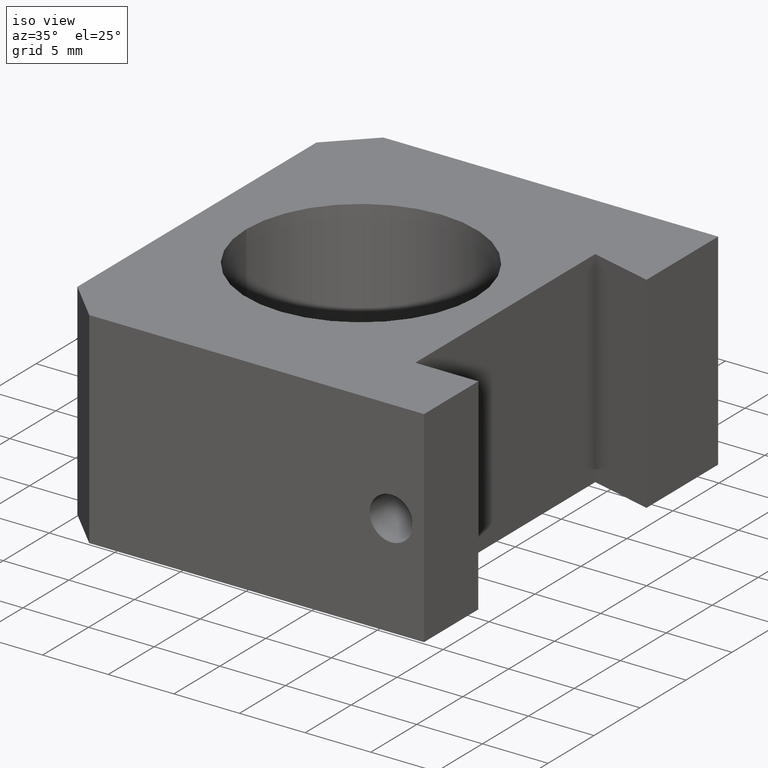
[diagram: clean part render]
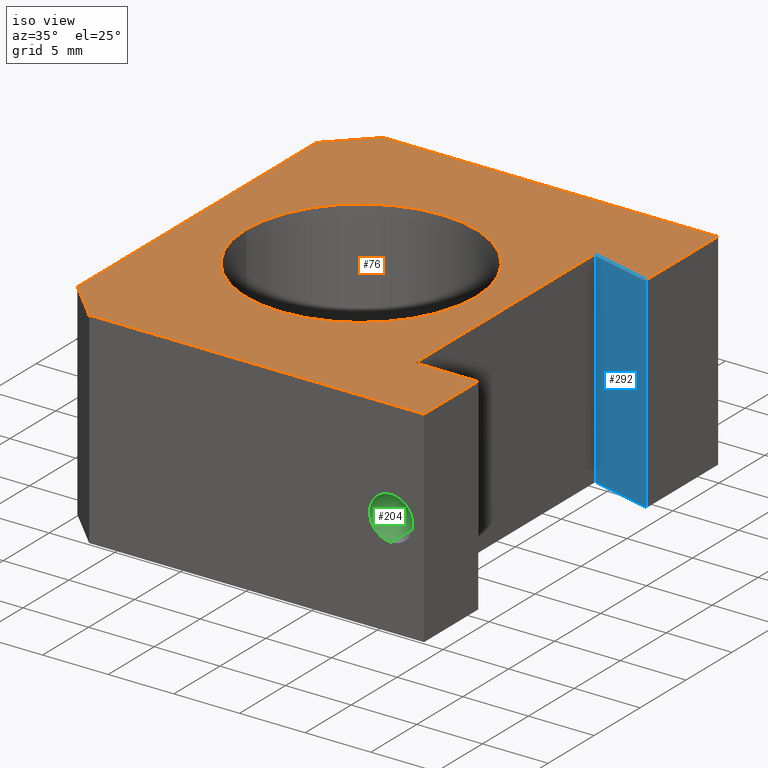
[diagram: same view with three faces highlighted in distinct colors, each labeled with its STEP entity id]
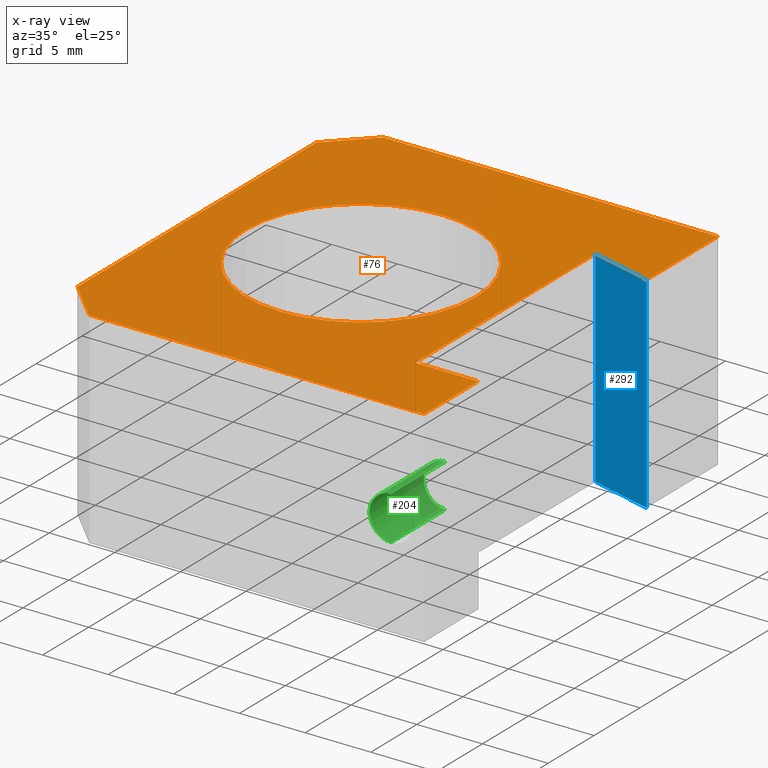
[diagram: x-ray of the same camera — body ghosted, the three highlighted faces saturated]
A machine part, iso view with three faces highlighted in distinct colors.
The next image is the same camera in x-ray (body ghosted, the three faces saturated) — at least one of them is partly hidden behind the body in this view.
Their STEP definitions:

[orange] entity #76 — the highlighted planar face has unit normal (-0, 0, 1).
#4 = CARTESIAN_POINT ( 'NONE',  ( 9.449999999999999300, -10.10000000000000100, 15.69999999999999900 ) ) ;
#12 = DIRECTION ( 'NONE',  ( -1.000000000000000000, -0.0000000000000000000, -0.0000000000000000000 ) ) ;
#16 = CARTESIAN_POINT ( 'NONE',  ( 9.449999999999999300, -10.10000000000000100, 15.69999999999999900 ) ) ;
#19 = FACE_BOUND ( 'NONE', #295, .T. ) ;
#41 = VERTEX_POINT ( 'NONE', #238 ) ;
#43 = VECTOR ( 'NONE', #561, 1000.000000000000000 ) ;
#49 = VECTOR ( 'NONE', #12, 1000.000000000000000 ) ;
#56 = CARTESIAN_POINT ( 'NONE',  ( -14.25000000000000500, 16.00000000000000000, 15.69999999999999900 ) ) ;
#59 = DIRECTION ( 'NONE',  ( -0.0000000000000000000, 0.0000000000000000000, 1.000000000000000000 ) ) ;
#60 = EDGE_CURVE ( 'NONE', #200, #160, #490, .T. ) ;
#64 = DIRECTION ( 'NONE',  ( -1.626303258728256700E-016, 1.000000000000000000, -0.0000000000000000000 ) ) ;
#69 = ORIENTED_EDGE ( 'NONE', *, *, #556, .T. ) ;
#73 = LINE ( 'NONE', #136, #522 ) ;
#76 = ADVANCED_FACE ( 'NONE', ( #19, #387 ), #279, .T. ) ;
#83 = VERTEX_POINT ( 'NONE', #139 ) ;
#84 = ORIENTED_EDGE ( 'NONE', *, *, #420, .T. ) ;
#86 = AXIS2_PLACEMENT_3D ( 'NONE', #550, #187, #506 ) ;
#89 = EDGE_CURVE ( 'NONE', #350, #293, #125, .T. ) ;
#91 = CARTESIAN_POINT ( 'NONE',  ( 14.25000000000000000, -10.10000000000000100, 15.69999999999999900 ) ) ;
#100 = VERTEX_POINT ( 'NONE', #555 ) ;
#103 = CARTESIAN_POINT ( 'NONE',  ( -10.49999999999999600, 1.071565949253933500E-015, 15.69999999999999900 ) ) ;
#105 = CARTESIAN_POINT ( 'NONE',  ( -14.25000000000000000, -16.00000000000000000, 15.69999999999999900 ) ) ;
#109 = CARTESIAN_POINT ( 'NONE',  ( 14.24999999999999500, 16.00000000000000000, 15.69999999999999900 ) ) ;
#119 = DIRECTION ( 'NONE',  ( 1.000000000000000000, 0.0000000000000000000, 0.0000000000000000000 ) ) ;
#122 = LINE ( 'NONE', #109, #250 ) ;
#124 = EDGE_CURVE ( 'NONE', #41, #311, #467, .T. ) ;
#125 = CIRCLE ( 'NONE', #433, 8.749999999999998200 ) ;
#126 = ORIENTED_EDGE ( 'NONE', *, *, #89, .F. ) ;
#136 = CARTESIAN_POINT ( 'NONE',  ( 9.449999999999997500, 9.486156123669372800, 15.69999999999999900 ) ) ;
#139 = CARTESIAN_POINT ( 'NONE',  ( -14.25000000000000000, -12.99999999999999100, 15.69999999999999900 ) ) ;
#148 = CARTESIAN_POINT ( 'NONE',  ( -13.62499999999997000, 13.62500000000003200, 15.69999999999999900 ) ) ;
#149 = DIRECTION ( 'NONE',  ( -1.626303258728256700E-016, 1.000000000000000000, -0.0000000000000000000 ) ) ;
#158 = LINE ( 'NONE', #105, #380 ) ;
#160 = VERTEX_POINT ( 'NONE', #249 ) ;
#163 = ORIENTED_EDGE ( 'NONE', *, *, #485, .F. ) ;
#166 = CIRCLE ( 'NONE', #86, 8.749999999999998200 ) ;
#177 = VECTOR ( 'NONE', #504, 1000.000000000000000 ) ;
#180 = VERTEX_POINT ( 'NONE', #568 ) ;
#185 = DIRECTION ( 'NONE',  ( 1.626303258728256700E-016, -1.000000000000000000, 0.0000000000000000000 ) ) ;
#187 = DIRECTION ( 'NONE',  ( -0.0000000000000000000, -0.0000000000000000000, 1.000000000000000000 ) ) ;
#196 = CARTESIAN_POINT ( 'NONE',  ( -11.24999999999998900, 16.00000000000000000, 15.69999999999999900 ) ) ;
#200 = VERTEX_POINT ( 'NONE', #196 ) ;
#205 = CARTESIAN_POINT ( 'NONE',  ( -1.749999999999999800, 0.0000000000000000000, 15.69999999999999900 ) ) ;
#215 = ORIENTED_EDGE ( 'NONE', *, *, #60, .T. ) ;
#217 = VECTOR ( 'NONE', #64, 1000.000000000000000 ) ;
#221 = DIRECTION ( 'NONE',  ( 8.856885776992442400E-017, -1.000000000000000000, 0.0000000000000000000 ) ) ;
#227 = CARTESIAN_POINT ( 'NONE',  ( -14.25000000000000500, 16.00000000000000000, 15.69999999999999900 ) ) ;
#238 = CARTESIAN_POINT ( 'NONE',  ( 14.25000000000000000, 8.199999999999999300, 15.69999999999999900 ) ) ;
#249 = CARTESIAN_POINT ( 'NONE',  ( -14.25000000000000500, 12.99999999999999800, 15.69999999999999900 ) ) ;
#250 = VECTOR ( 'NONE', #149, 1000.000000000000000 ) ;
#254 = ORIENTED_EDGE ( 'NONE', *, *, #462, .F. ) ;
#268 = VECTOR ( 'NONE', #553, 1000.000000000000000 ) ;
#272 = DIRECTION ( 'NONE',  ( 1.000000000000000000, 0.0000000000000000000, 0.0000000000000000000 ) ) ;
#279 = PLANE ( 'NONE',  #341 ) ;
#287 = CARTESIAN_POINT ( 'NONE',  ( 9.449999999999997500, 9.486156123669372800, 15.69999999999999900 ) ) ;
#290 = ORIENTED_EDGE ( 'NONE', *, *, #383, .F. ) ;
#293 = VERTEX_POINT ( 'NONE', #461 ) ;
#295 = EDGE_LOOP ( 'NONE', ( #290, #126 ) ) ;
#303 = ORIENTED_EDGE ( 'NONE', *, *, #124, .F. ) ;
#305 = EDGE_CURVE ( 'NONE', #160, #83, #580, .T. ) ;
#311 = VERTEX_POINT ( 'NONE', #505 ) ;
#321 = CARTESIAN_POINT ( 'NONE',  ( 14.25000000000000000, -16.00000000000000000, 15.69999999999999900 ) ) ;
#325 = DIRECTION ( 'NONE',  ( 1.000000000000000000, 0.0000000000000000000, 0.0000000000000000000 ) ) ;
#330 = CARTESIAN_POINT ( 'NONE',  ( 14.24999999999999500, 16.00000000000000000, 15.69999999999999900 ) ) ;
#332 = ORIENTED_EDGE ( 'NONE', *, *, #305, .T. ) ;
#341 = AXIS2_PLACEMENT_3D ( 'NONE', #415, #59, #325 ) ;
#349 = EDGE_CURVE ( 'NONE', #83, #180, #532, .T. ) ;
#350 = VERTEX_POINT ( 'NONE', #103 ) ;
#359 = EDGE_CURVE ( 'NONE', #100, #200, #405, .T. ) ;
#380 = VECTOR ( 'NONE', #272, 1000.000000000000000 ) ;
#383 = EDGE_CURVE ( 'NONE', #293, #350, #166, .T. ) ;
#384 = DIRECTION ( 'NONE',  ( -0.0000000000000000000, -0.0000000000000000000, 1.000000000000000000 ) ) ;
#387 = FACE_OUTER_BOUND ( 'NONE', #445, .T. ) ;
#405 = LINE ( 'NONE', #227, #49 ) ;
#406 = LINE ( 'NONE', #16, #268 ) ;
#410 = CARTESIAN_POINT ( 'NONE',  ( -13.62500000000002700, -13.62499999999996400, 15.69999999999999900 ) ) ;
#415 = CARTESIAN_POINT ( 'NONE',  ( 0.0000000000000000000, 0.0000000000000000000, 15.69999999999999900 ) ) ;
#420 = EDGE_CURVE ( 'NONE', #180, #510, #158, .T. ) ;
#433 = AXIS2_PLACEMENT_3D ( 'NONE', #205, #384, #119 ) ;
#445 = EDGE_LOOP ( 'NONE', ( #303, #69, #491, #215, #332, #527, #84, #455, #163, #254 ) ) ;
#455 = ORIENTED_EDGE ( 'NONE', *, *, #576, .T. ) ;
#456 = VERTEX_POINT ( 'NONE', #91 ) ;
#461 = CARTESIAN_POINT ( 'NONE',  ( 6.999999999999997300, 0.0000000000000000000, 15.69999999999999900 ) ) ;
#462 = EDGE_CURVE ( 'NONE', #311, #474, #73, .T. ) ;
#467 = LINE ( 'NONE', #287, #483 ) ;
#474 = VERTEX_POINT ( 'NONE', #4 ) ;
#483 = VECTOR ( 'NONE', #571, 999.9999999999998900 ) ;
#485 = EDGE_CURVE ( 'NONE', #474, #456, #406, .T. ) ;
#490 = LINE ( 'NONE', #148, #43 ) ;
#491 = ORIENTED_EDGE ( 'NONE', *, *, #359, .T. ) ;
#504 = DIRECTION ( 'NONE',  ( 0.7071067811865459100, -0.7071067811865491300, 0.0000000000000000000 ) ) ;
#505 = CARTESIAN_POINT ( 'NONE',  ( 9.449999999999997500, 9.486156123669372800, 15.69999999999999900 ) ) ;
#506 = DIRECTION ( 'NONE',  ( 1.000000000000000000, 0.0000000000000000000, 0.0000000000000000000 ) ) ;
#510 = VERTEX_POINT ( 'NONE', #321 ) ;
#522 = VECTOR ( 'NONE', #221, 1000.000000000000000 ) ;
#527 = ORIENTED_EDGE ( 'NONE', *, *, #349, .T. ) ;
#532 = LINE ( 'NONE', #410, #177 ) ;
#546 = VECTOR ( 'NONE', #185, 1000.000000000000000 ) ;
#550 = CARTESIAN_POINT ( 'NONE',  ( -1.749999999999999800, 0.0000000000000000000, 15.69999999999999900 ) ) ;
#553 = DIRECTION ( 'NONE',  ( 1.000000000000000000, 0.0000000000000000000, 0.0000000000000000000 ) ) ;
#555 = CARTESIAN_POINT ( 'NONE',  ( 14.24999999999999500, 16.00000000000000000, 15.69999999999999900 ) ) ;
#556 = EDGE_CURVE ( 'NONE', #41, #100, #122, .T. ) ;
#561 = DIRECTION ( 'NONE',  ( -0.7071067811865491300, -0.7071067811865459100, -0.0000000000000000000 ) ) ;
#568 = CARTESIAN_POINT ( 'NONE',  ( -11.25000000000000700, -16.00000000000000000, 15.69999999999999900 ) ) ;
#571 = DIRECTION ( 'NONE',  ( -0.9659258262890692000, 0.2588190451025178000, -0.0000000000000000000 ) ) ;
#576 = EDGE_CURVE ( 'NONE', #510, #456, #577, .T. ) ;
#577 = LINE ( 'NONE', #330, #217 ) ;
#580 = LINE ( 'NONE', #56, #546 ) ;

[blue] entity #292 — the highlighted planar face has unit normal (0.2588, 0.9659, 0).
#41 = VERTEX_POINT ( 'NONE', #238 ) ;
#42 = EDGE_CURVE ( 'NONE', #548, #168, #369, .T. ) ;
#74 = CARTESIAN_POINT ( 'NONE',  ( 9.449999999999997500, 9.486156123669372800, 0.0000000000000000000 ) ) ;
#106 = DIRECTION ( 'NONE',  ( -0.9659258262890692000, 0.2588190451025178000, 0.0000000000000000000 ) ) ;
#116 = CARTESIAN_POINT ( 'NONE',  ( 14.25000000000000000, 8.199999999999999300, 0.0000000000000000000 ) ) ;
#124 = EDGE_CURVE ( 'NONE', #41, #311, #467, .T. ) ;
#130 = ORIENTED_EDGE ( 'NONE', *, *, #489, .F. ) ;
#144 = DIRECTION ( 'NONE',  ( 0.2588190451025178000, 0.9659258262890692000, 0.0000000000000000000 ) ) ;
#167 = LINE ( 'NONE', #260, #381 ) ;
#168 = VERTEX_POINT ( 'NONE', #74 ) ;
#171 = EDGE_CURVE ( 'NONE', #548, #41, #579, .T. ) ;
#173 = DIRECTION ( 'NONE',  ( -0.0000000000000000000, -0.0000000000000000000, 1.000000000000000000 ) ) ;
#186 = ORIENTED_EDGE ( 'NONE', *, *, #42, .F. ) ;
#190 = DIRECTION ( 'NONE',  ( -0.9659258262890692000, 0.2588190451025178000, -0.0000000000000000000 ) ) ;
#207 = AXIS2_PLACEMENT_3D ( 'NONE', #233, #144, #106 ) ;
#233 = CARTESIAN_POINT ( 'NONE',  ( 9.449999999999997500, 9.486156123669372800, 0.0000000000000000000 ) ) ;
#238 = CARTESIAN_POINT ( 'NONE',  ( 14.25000000000000000, 8.199999999999999300, 15.69999999999999900 ) ) ;
#252 = VECTOR ( 'NONE', #190, 999.9999999999998900 ) ;
#260 = CARTESIAN_POINT ( 'NONE',  ( 9.449999999999997500, 9.486156123669372800, 0.0000000000000000000 ) ) ;
#287 = CARTESIAN_POINT ( 'NONE',  ( 9.449999999999997500, 9.486156123669372800, 15.69999999999999900 ) ) ;
#292 = ADVANCED_FACE ( 'NONE', ( #439 ), #324, .F. ) ;
#311 = VERTEX_POINT ( 'NONE', #505 ) ;
#316 = ORIENTED_EDGE ( 'NONE', *, *, #124, .T. ) ;
#324 = PLANE ( 'NONE',  #207 ) ;
#328 = CARTESIAN_POINT ( 'NONE',  ( 9.449999999999997500, 9.486156123669372800, 0.0000000000000000000 ) ) ;
#369 = LINE ( 'NONE', #328, #252 ) ;
#381 = VECTOR ( 'NONE', #173, 1000.000000000000000 ) ;
#426 = DIRECTION ( 'NONE',  ( -0.0000000000000000000, -0.0000000000000000000, 1.000000000000000000 ) ) ;
#439 = FACE_OUTER_BOUND ( 'NONE', #540, .T. ) ;
#448 = VECTOR ( 'NONE', #426, 1000.000000000000000 ) ;
#467 = LINE ( 'NONE', #287, #483 ) ;
#483 = VECTOR ( 'NONE', #571, 999.9999999999998900 ) ;
#489 = EDGE_CURVE ( 'NONE', #168, #311, #167, .T. ) ;
#505 = CARTESIAN_POINT ( 'NONE',  ( 9.449999999999997500, 9.486156123669372800, 15.69999999999999900 ) ) ;
#540 = EDGE_LOOP ( 'NONE', ( #316, #130, #186, #572 ) ) ;
#548 = VERTEX_POINT ( 'NONE', #557 ) ;
#557 = CARTESIAN_POINT ( 'NONE',  ( 14.25000000000000000, 8.199999999999999300, 0.0000000000000000000 ) ) ;
#571 = DIRECTION ( 'NONE',  ( -0.9659258262890692000, 0.2588190451025178000, -0.0000000000000000000 ) ) ;
#572 = ORIENTED_EDGE ( 'NONE', *, *, #171, .T. ) ;
#579 = LINE ( 'NONE', #116, #448 ) ;

[green] entity #204 — the highlighted cylindrical surface (edge-blend (fillet) strip) has radius 1.65 mm, axis along (-0, -1, -0).
#8 = VERTEX_POINT ( 'NONE', #197 ) ;
#21 = CARTESIAN_POINT ( 'NONE',  ( 11.75000000000000000, -16.00000000000000000, 9.499999999999994700 ) ) ;
#50 = CIRCLE ( 'NONE', #175, 1.649999999999995200 ) ;
#87 = ORIENTED_EDGE ( 'NONE', *, *, #539, .F. ) ;
#101 = DIRECTION ( 'NONE',  ( -0.0000000000000000000, -1.000000000000000000, -0.0000000000000000000 ) ) ;
#107 = CARTESIAN_POINT ( 'NONE',  ( 11.75000000000000000, -16.00000000000000000, 6.200000000000004600 ) ) ;
#110 = FACE_OUTER_BOUND ( 'NONE', #298, .T. ) ;
#146 = VERTEX_POINT ( 'NONE', #340 ) ;
#175 = AXIS2_PLACEMENT_3D ( 'NONE', #317, #101, #219 ) ;
#197 = CARTESIAN_POINT ( 'NONE',  ( 11.75000000000000000, -10.10000000000000100, 6.200000000000004600 ) ) ;
#204 = ADVANCED_FACE ( 'NONE', ( #110 ), #563, .F. ) ;
#210 = EDGE_CURVE ( 'NONE', #318, #146, #331, .T. ) ;
#219 = DIRECTION ( 'NONE',  ( 0.0000000000000000000, 0.0000000000000000000, -1.000000000000000000 ) ) ;
#228 = VECTOR ( 'NONE', #277, 1000.000000000000000 ) ;
#229 = CARTESIAN_POINT ( 'NONE',  ( 11.75000000000000000, -10.10000000000000100, 9.499999999999994700 ) ) ;
#246 = DIRECTION ( 'NONE',  ( -0.0000000000000000000, -1.000000000000000000, -0.0000000000000000000 ) ) ;
#262 = ORIENTED_EDGE ( 'NONE', *, *, #267, .F. ) ;
#267 = EDGE_CURVE ( 'NONE', #318, #8, #454, .T. ) ;
#276 = CARTESIAN_POINT ( 'NONE',  ( 11.75000000000000000, -10.10000000000000100, 7.849999999999999600 ) ) ;
#277 = DIRECTION ( 'NONE',  ( -0.0000000000000000000, -1.000000000000000000, -0.0000000000000000000 ) ) ;
#280 = CARTESIAN_POINT ( 'NONE',  ( 11.75000000000000000, -16.00000000000000000, 6.200000000000003700 ) ) ;
#298 = EDGE_LOOP ( 'NONE', ( #262, #315, #336, #87 ) ) ;
#309 = VECTOR ( 'NONE', #564, 1000.000000000000000 ) ;
#315 = ORIENTED_EDGE ( 'NONE', *, *, #210, .T. ) ;
#317 = CARTESIAN_POINT ( 'NONE',  ( 11.75000000000000000, -16.00000000000000000, 7.849999999999999600 ) ) ;
#318 = VERTEX_POINT ( 'NONE', #229 ) ;
#322 = AXIS2_PLACEMENT_3D ( 'NONE', #276, #554, #508 ) ;
#331 = LINE ( 'NONE', #21, #309 ) ;
#336 = ORIENTED_EDGE ( 'NONE', *, *, #478, .T. ) ;
#337 = CARTESIAN_POINT ( 'NONE',  ( 11.75000000000000000, -16.00000000000000000, 7.849999999999999600 ) ) ;
#340 = CARTESIAN_POINT ( 'NONE',  ( 11.75000000000000000, -16.00000000000000000, 9.499999999999994700 ) ) ;
#351 = LINE ( 'NONE', #107, #228 ) ;
#353 = AXIS2_PLACEMENT_3D ( 'NONE', #337, #246, #471 ) ;
#454 = CIRCLE ( 'NONE', #322, 1.649999999999994400 ) ;
#471 = DIRECTION ( 'NONE',  ( 0.0000000000000000000, 0.0000000000000000000, -1.000000000000000000 ) ) ;
#478 = EDGE_CURVE ( 'NONE', #146, #581, #50, .T. ) ;
#508 = DIRECTION ( 'NONE',  ( 0.0000000000000000000, 0.0000000000000000000, -1.000000000000000000 ) ) ;
#539 = EDGE_CURVE ( 'NONE', #8, #581, #351, .T. ) ;
#554 = DIRECTION ( 'NONE',  ( 0.0000000000000000000, -1.000000000000000000, 0.0000000000000000000 ) ) ;
#563 = CYLINDRICAL_SURFACE ( 'NONE', #353, 1.649999999999994400 ) ;
#564 = DIRECTION ( 'NONE',  ( -0.0000000000000000000, -1.000000000000000000, -0.0000000000000000000 ) ) ;
#581 = VERTEX_POINT ( 'NONE', #280 ) ;